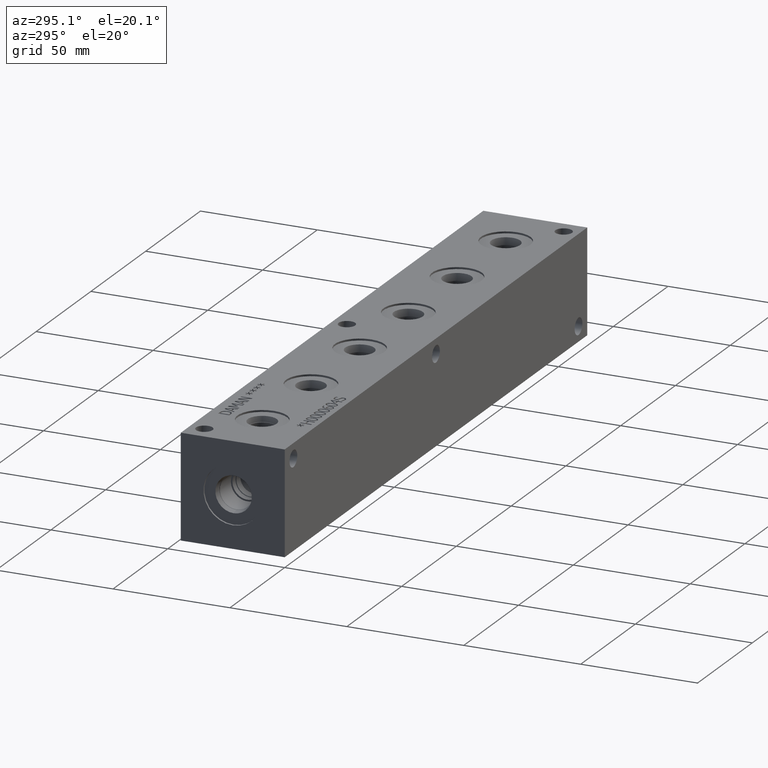
[diagram: clean part render]
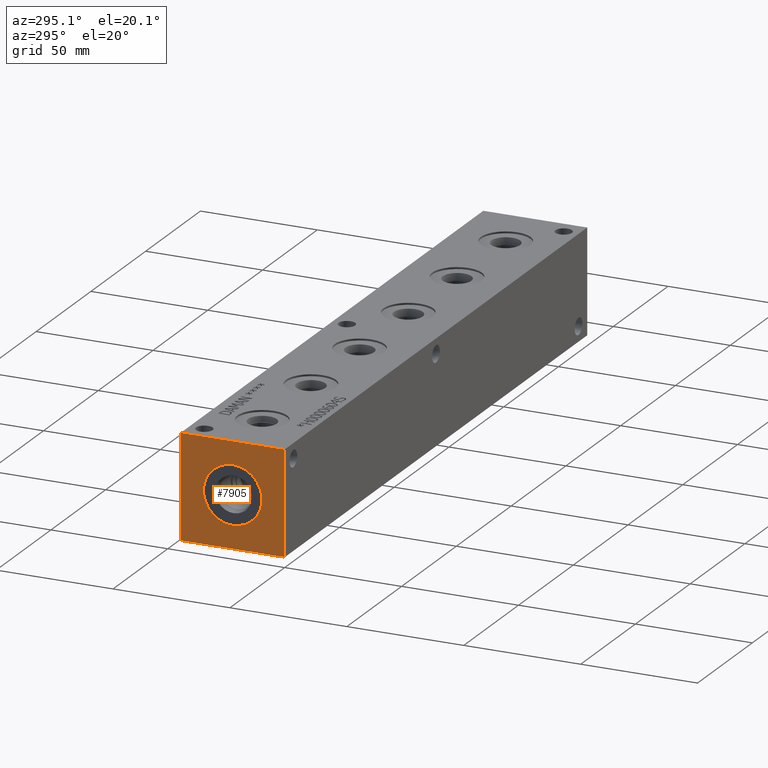
[diagram: same view with one face highlighted and labeled with its STEP entity id]
A machine part, auxiliary view. The second image highlights one B-rep face of the part: STEP entity #7905.
In plain terms, the highlighted planar face has unit normal (-1, 0, 0).
Its self-contained STEP definition (entity closure, byte-faithful):
#259=CIRCLE('',#8384,12.5095);
#260=CIRCLE('',#8385,12.5095);
#323=FACE_BOUND('',#1512,.T.);
#1047=FACE_OUTER_BOUND('',#1511,.T.);
#1511=EDGE_LOOP('',(#6942,#6943,#6944,#6945));
#1512=EDGE_LOOP('',(#6946,#6947));
#1776=LINE('',#12205,#2493);
#2237=LINE('',#13645,#2954);
#2238=LINE('',#13646,#2955);
#2239=LINE('',#13647,#2956);
#2493=VECTOR('',#8776,10.);
#2954=VECTOR('',#10063,10.);
#2955=VECTOR('',#10064,10.);
#2956=VECTOR('',#10065,10.);
#3252=VERTEX_POINT('',#12198);
#3255=VERTEX_POINT('',#12203);
#3682=VERTEX_POINT('',#13614);
#3683=VERTEX_POINT('',#13615);
#3692=VERTEX_POINT('',#13643);
#3693=VERTEX_POINT('',#13644);
#4134=EDGE_CURVE('',#3255,#3252,#1776,.T.);
#4769=EDGE_CURVE('',#3682,#3683,#259,.T.);
#4770=EDGE_CURVE('',#3683,#3682,#260,.T.);
#4783=EDGE_CURVE('',#3692,#3693,#2237,.T.);
#4784=EDGE_CURVE('',#3693,#3252,#2238,.T.);
#4785=EDGE_CURVE('',#3692,#3255,#2239,.T.);
#6942=ORIENTED_EDGE('',*,*,#4783,.T.);
#6943=ORIENTED_EDGE('',*,*,#4784,.T.);
#6944=ORIENTED_EDGE('',*,*,#4134,.F.);
#6945=ORIENTED_EDGE('',*,*,#4785,.F.);
#6946=ORIENTED_EDGE('',*,*,#4769,.T.);
#6947=ORIENTED_EDGE('',*,*,#4770,.T.);
#7199=PLANE('',#8398);
#7905=ADVANCED_FACE('',(#1047,#323),#7199,.T.);
#8384=AXIS2_PLACEMENT_3D('',#13616,#10029,#10030);
#8385=AXIS2_PLACEMENT_3D('',#13617,#10031,#10032);
#8398=AXIS2_PLACEMENT_3D('',#13642,#10061,#10062);
#8776=DIRECTION('',(0.,-1.,0.));
#10029=DIRECTION('center_axis',(1.,0.,0.));
#10030=DIRECTION('ref_axis',(0.,0.,1.));
#10031=DIRECTION('center_axis',(1.,0.,0.));
#10032=DIRECTION('ref_axis',(0.,0.,1.));
#10061=DIRECTION('center_axis',(-1.,0.,0.));
#10062=DIRECTION('ref_axis',(0.,-1.,0.));
#10063=DIRECTION('',(0.,-1.,0.));
#10064=DIRECTION('',(0.,0.,1.));
#10065=DIRECTION('',(0.,0.,1.));
#12198=CARTESIAN_POINT('',(0.,0.,44.45));
#12203=CARTESIAN_POINT('',(0.,44.45,44.45));
#12205=CARTESIAN_POINT('',(0.,44.45,44.45));
#13614=CARTESIAN_POINT('',(0.,22.225,34.7345));
#13615=CARTESIAN_POINT('',(0.,22.225,9.7155));
#13616=CARTESIAN_POINT('Origin',(0.,22.225,22.225));
#13617=CARTESIAN_POINT('Origin',(0.,22.225,22.225));
#13642=CARTESIAN_POINT('Origin',(0.,44.45,0.));
#13643=CARTESIAN_POINT('',(0.,44.45,0.));
#13644=CARTESIAN_POINT('',(0.,0.,0.));
#13645=CARTESIAN_POINT('',(0.,44.45,0.));
#13646=CARTESIAN_POINT('',(0.,0.,0.));
#13647=CARTESIAN_POINT('',(0.,44.45,0.));